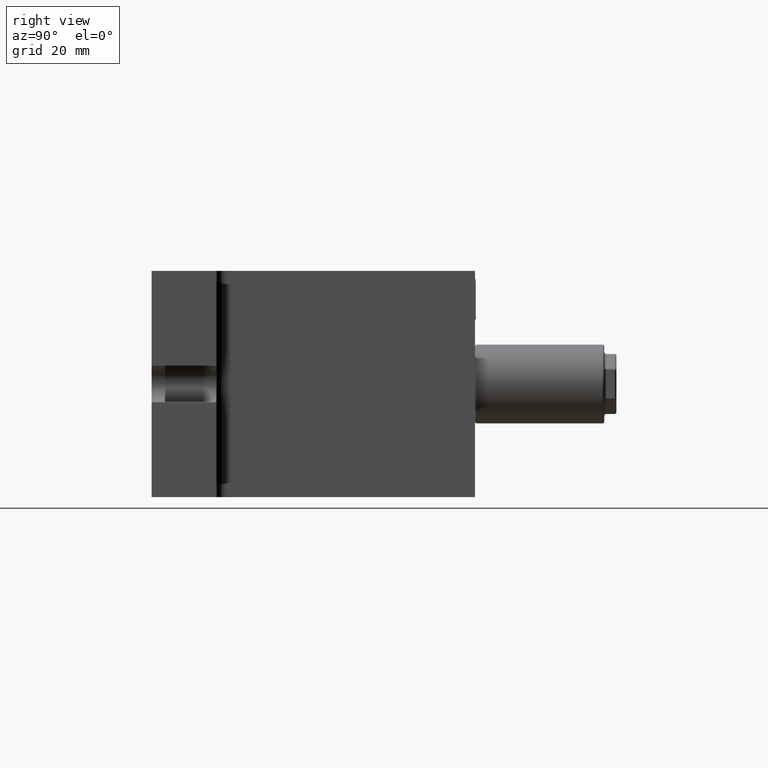
[diagram: clean part render]
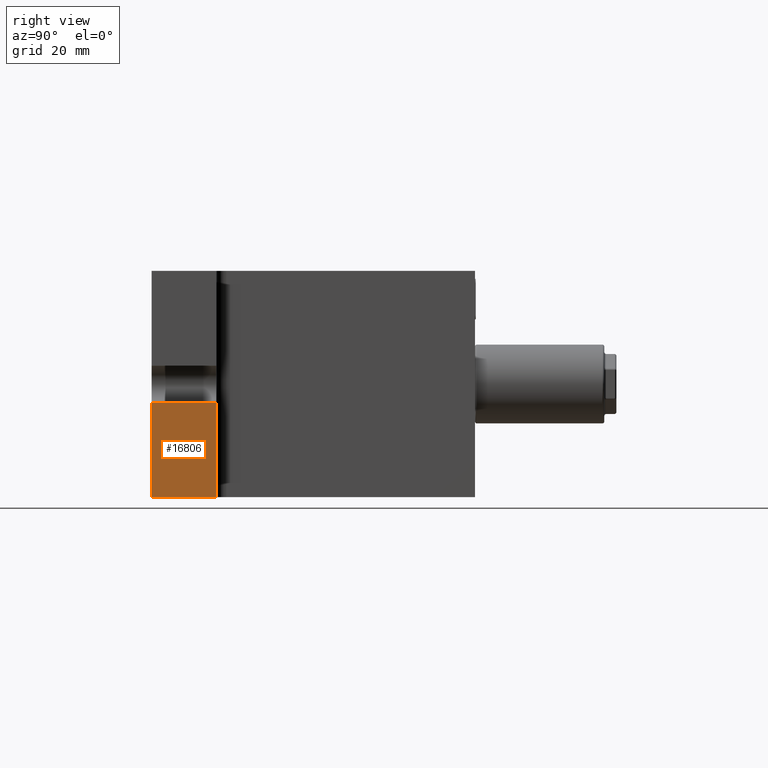
[diagram: same view with one face highlighted and labeled with its STEP entity id]
A machine part, right view. The second image highlights one B-rep face of the part: STEP entity #16806.
In plain terms, the highlighted planar face has unit normal (-1, 0, 0).
Its self-contained STEP definition (entity closure, byte-faithful):
#641 = VECTOR ( 'NONE', #5012, 1000.000000000000000 ) ;
#1478 = EDGE_LOOP ( 'NONE', ( #14746, #3868, #7808, #13563 ) ) ;
#1557 = VERTEX_POINT ( 'NONE', #6654 ) ;
#1641 = AXIS2_PLACEMENT_3D ( 'NONE', #18504, #11443, #19907 ) ;
#2891 = VERTEX_POINT ( 'NONE', #13615 ) ;
#3850 = CARTESIAN_POINT ( 'NONE',  ( 64.00000000000000000, -40.00000000000000000, 28.00000000000000000 ) ) ;
#3868 = ORIENTED_EDGE ( 'NONE', *, *, #8963, .F. ) ;
#3961 = EDGE_CURVE ( 'NONE', #11007, #1557, #18778, .T. ) ;
#4324 = VECTOR ( 'NONE', #4977, 1000.000000000000000 ) ;
#4408 = DIRECTION ( 'NONE',  ( 0.0000000000000000000, 1.000000000000000000, 0.0000000000000000000 ) ) ;
#4977 = DIRECTION ( 'NONE',  ( 0.0000000000000000000, 1.000000000000000000, 0.0000000000000000000 ) ) ;
#5012 = DIRECTION ( 'NONE',  ( 0.0000000000000000000, 0.0000000000000000000, 1.000000000000000000 ) ) ;
#5521 = VECTOR ( 'NONE', #4408, 1000.000000000000000 ) ;
#6654 = CARTESIAN_POINT ( 'NONE',  ( 64.00000000000000000, -24.00000000000000000, -4.500000000000000000 ) ) ;
#6813 = CARTESIAN_POINT ( 'NONE',  ( 64.00000000000000000, -24.00000000000000000, -28.00000000000000000 ) ) ;
#7365 = EDGE_CURVE ( 'NONE', #11559, #11007, #16049, .T. ) ;
#7808 = ORIENTED_EDGE ( 'NONE', *, *, #11509, .T. ) ;
#8963 = EDGE_CURVE ( 'NONE', #2891, #1557, #10598, .T. ) ;
#10598 = LINE ( 'NONE', #20069, #4324 ) ;
#11007 = VERTEX_POINT ( 'NONE', #6813 ) ;
#11443 = DIRECTION ( 'NONE',  ( -1.000000000000000000, 0.0000000000000000000, 0.0000000000000000000 ) ) ;
#11509 = EDGE_CURVE ( 'NONE', #2891, #11559, #15775, .T. ) ;
#11559 = VERTEX_POINT ( 'NONE', #19084 ) ;
#11844 = VECTOR ( 'NONE', #20932, 1000.000000000000000 ) ;
#13563 = ORIENTED_EDGE ( 'NONE', *, *, #7365, .T. ) ;
#13615 = CARTESIAN_POINT ( 'NONE',  ( 64.00000000000000000, -40.00000000000000000, -4.500000000000000000 ) ) ;
#14746 = ORIENTED_EDGE ( 'NONE', *, *, #3961, .T. ) ;
#15095 = PLANE ( 'NONE',  #1641 ) ;
#15775 = LINE ( 'NONE', #3850, #11844 ) ;
#16049 = LINE ( 'NONE', #17547, #5521 ) ;
#16806 = ADVANCED_FACE ( 'NONE', ( #19516 ), #15095, .F. ) ;
#17547 = CARTESIAN_POINT ( 'NONE',  ( 64.00000000000000000, -40.00000000000000000, -28.00000000000000000 ) ) ;
#18504 = CARTESIAN_POINT ( 'NONE',  ( 64.00000000000000000, -40.00000000000000000, 28.00000000000000000 ) ) ;
#18542 = CARTESIAN_POINT ( 'NONE',  ( 64.00000000000000000, -24.00000000000000000, -28.00000000000000000 ) ) ;
#18778 = LINE ( 'NONE', #18542, #641 ) ;
#19084 = CARTESIAN_POINT ( 'NONE',  ( 64.00000000000000000, -40.00000000000000000, -28.00000000000000000 ) ) ;
#19516 = FACE_OUTER_BOUND ( 'NONE', #1478, .T. ) ;
#19907 = DIRECTION ( 'NONE',  ( 0.0000000000000000000, 0.0000000000000000000, 1.000000000000000000 ) ) ;
#20069 = CARTESIAN_POINT ( 'NONE',  ( 64.00000000000000000, -40.00000000000000000, -4.500000000000000000 ) ) ;
#20932 = DIRECTION ( 'NONE',  ( 0.0000000000000000000, 0.0000000000000000000, -1.000000000000000000 ) ) ;